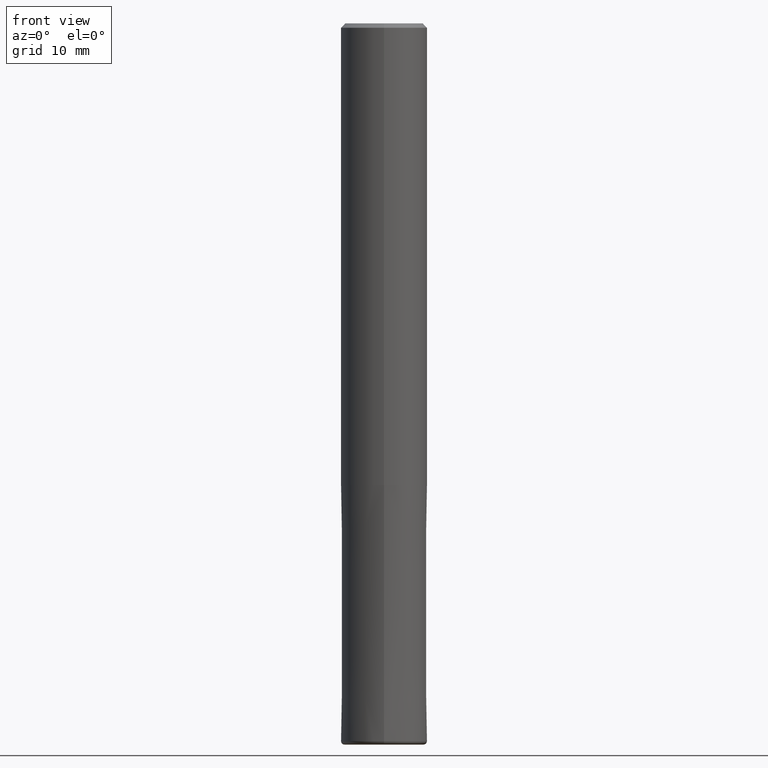
[diagram: clean part render]
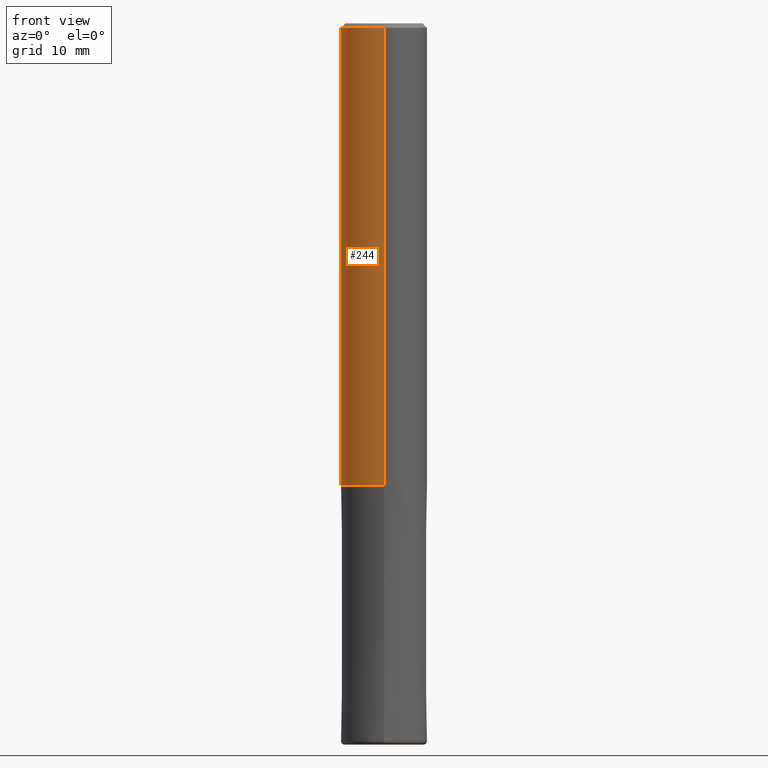
[diagram: same view with one face highlighted and labeled with its STEP entity id]
A machine part, front view. The second image highlights one B-rep face of the part: STEP entity #244.
In plain terms, the highlighted cylindrical surface (partial cylindrical patch) has radius 6 mm, axis along (-0, -0, 1).
Its self-contained STEP definition (entity closure, byte-faithful):
#106=VERTEX_POINT('',#267);
#120=EDGE_CURVE('',#214,#106,#283,.T.);
#160=EDGE_CURVE('',#106,#222,#325,.T.);
#178=EDGE_CURVE('',#194,#214,#346,.T.);
#194=VERTEX_POINT('',#364);
#214=VERTEX_POINT('',#386);
#222=VERTEX_POINT('',#397);
#230=EDGE_CURVE('',#194,#222,#408,.T.);
#244=ADVANCED_FACE('',(#424),#425,.T.);
#267=CARTESIAN_POINT('',(0.0,6.0,-0.600000000000001));
#283=CIRCLE('',#459,6.0);
#325=LINE('',#522,#523);
#346=LINE('',#547,#548);
#364=CARTESIAN_POINT('',(7.34763812293426E-016,-6.0,-64.0));
#386=CARTESIAN_POINT('',(7.34763812293426E-016,-6.0,-0.600000000000001));
#397=CARTESIAN_POINT('',(0.0,6.0,-64.0));
#408=CIRCLE('',#619,6.0);
#424=FACE_OUTER_BOUND('',#637,.T.);
#425=CYLINDRICAL_SURFACE('',#638,6.0);
#459=AXIS2_PLACEMENT_3D('',#662,#663,#664);
#522=CARTESIAN_POINT('',(-7.34763812293426E-016,6.0,-32.3));
#523=VECTOR('',#711,1.0);
#547=CARTESIAN_POINT('',(7.34763812293426E-016,-6.0,-32.3));
#548=VECTOR('',#738,1.0);
#619=AXIS2_PLACEMENT_3D('',#817,#818,#819);
#637=EDGE_LOOP('',(#843,#844,#845,#846));
#638=AXIS2_PLACEMENT_3D('',#847,#848,#849);
#662=CARTESIAN_POINT('',(0.0,0.0,-0.600000000000001));
#663=DIRECTION('',(0.0,0.0,-1.0));
#664=DIRECTION('',(0.0,1.0,0.0));
#711=DIRECTION('',(0.0,0.0,-1.0));
#738=DIRECTION('',(-0.0,-0.0,1.0));
#817=CARTESIAN_POINT('',(0.0,0.0,-64.0));
#818=DIRECTION('',(0.0,0.0,-1.0));
#819=DIRECTION('',(0.0,1.0,0.0));
#843=ORIENTED_EDGE('',*,*,#160,.T.);
#844=ORIENTED_EDGE('',*,*,#230,.F.);
#845=ORIENTED_EDGE('',*,*,#178,.T.);
#846=ORIENTED_EDGE('',*,*,#120,.T.);
#847=CARTESIAN_POINT('',(0.0,0.0,-32.3));
#848=DIRECTION('',(-0.0,-0.0,1.0));
#849=DIRECTION('',(0.0,1.0,0.0));